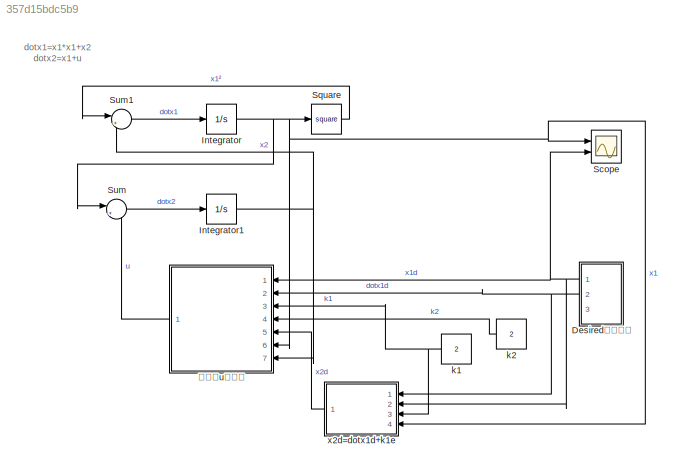
MODEL slx_357d15bdc5b9
KIND model
CONFIG AbsTol = auto
CONFIG EnableMultiTasking = off
CONFIG FixedStep = auto
CONFIG MaxStep = auto
CONFIG MinStep = auto
CONFIG RelTol = 1e-3
CONFIG SampleTimeConstraint = Unconstrained
CONFIG SolverName = VariableStepAuto
CONFIG StartTime = 0.0
CONFIG StopTime = 60
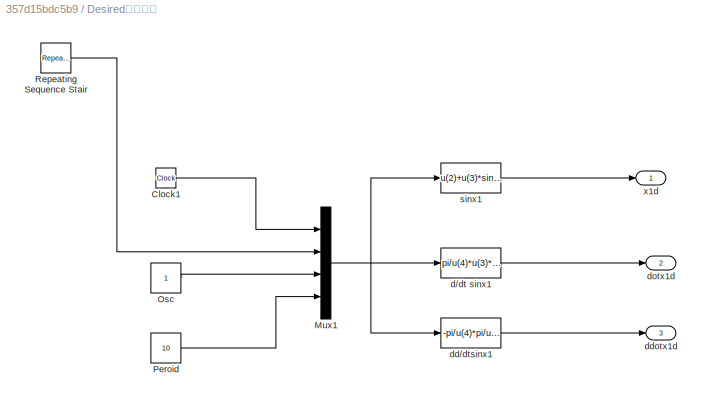
BLOCK [SubSystem] Desired设定轨迹
  Ports = [0, 3]
  RequestExecContextInheritance = off
BLOCK [Clock] Desired设定轨迹/Clock1
  Decimation = 100
BLOCK [Mux] Desired设定轨迹/Mux1
  DisplayOption = bar
  Ports = [4, 1]
BLOCK [Constant] Desired设定轨迹/Osc
BLOCK [Constant] Desired设定轨迹/Peroid
  Value = 10
BLOCK [Reference] Desired设定轨迹/Repeating Sequence Stair  REF=simulink/Sources/Repeating
Sequence
Stair
  Ports = [0, 1]
  SourceBlock = simulink/Sources/Repeating\nSequence\nStair
  SourceProductBaseCode = SL
  SourceType = Repeating Sequence Stair
BLOCK [Fcn] Desired设定轨迹/d//dt sinx1
  Expr = pi/u(4)*u(3)*cos(u(1)*pi/u(4))
BLOCK [Fcn] Desired设定轨迹/dd//dtsinx1
  Expr = -pi/u(4)*pi/u(4)*u(3)*sin(u(1)*pi/u(4))
BLOCK [Outport] Desired设定轨迹/ddotx1d
  Port = 3
BLOCK [Outport] Desired设定轨迹/dotx1d
  Port = 2
BLOCK [Fcn] Desired设定轨迹/sinx1
  Expr = u(2)+u(3)*sin(u(1)*pi/u(4))
BLOCK [Outport] Desired设定轨迹/x1d
BLOCK [Integrator] Integrator
  Ports = [1, 1]
BLOCK [Integrator] Integrator1
  Ports = [1, 1]
BLOCK [Scope] Scope
  Floating = off
  NumInputPorts = 2
  Ports = [2]
  ScopeSpecificationString = Simulink.scopes.TimeScopeBlockCfg('CurrentConfiguration', extmgr.ConfigurationSet(extmgr.Configuration('Core','General UI',true),extmgr.Configuration('Core','Source UI',true),extmgr.Configuration('Sources','WiredSimulink',true),extmgr.Configuration('Visuals','Time Domain',true,'SerializedDisplays',{struct('MinYLimReal','-0.27215','MaxYLimReal','2.27352','YLabelReal','','MinYLimMag','0.00000','MaxY...<+1357ch>
BLOCK [Math] Square
  Operator = square
  Ports = [1, 1]
BLOCK [Sum] Sum
  Inputs = |++
  Ports = [2, 1]
BLOCK [Sum] Sum1
  Inputs = |++
  Ports = [2, 1]
BLOCK [Constant] k1
  Value = 2
BLOCK [Constant] k2
  NameLocation = top
  Value = 2
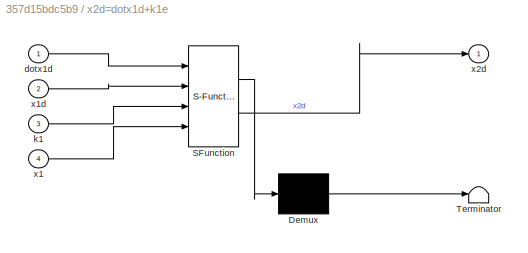
BLOCK [SubSystem] x2d=dotx1d+k1e
  ErrorFcn = Stateflow.Translate.translate
  PermitHierarchicalResolution = ExplicitOnly
  Ports = [4, 1]
  RequestExecContextInheritance = off
  SFBlockType = MATLAB Function
  TreatAsAtomicUnit = on
BLOCK [Demux] x2d=dotx1d+k1e/ Demux 
  Outputs = 1
  Ports = [1, 1]
BLOCK [S-Function] x2d=dotx1d+k1e/ SFunction 
  EnableBusSupport = on
  FunctionName = sf_sfun
  PortCounts = [4 2]
  Ports = [4, 2]
  SFcnIsStateOwnerBlock = off
  SFunctionDeploymentMode = off
  Tag = Stateflow S-Function 4
BLOCK [Terminator] x2d=dotx1d+k1e/ Terminator 
BLOCK [Inport] x2d=dotx1d+k1e/dotx1d
BLOCK [Inport] x2d=dotx1d+k1e/k1
  Port = 3
BLOCK [Inport] x2d=dotx1d+k1e/x1
  Port = 4
BLOCK [Inport] x2d=dotx1d+k1e/x1d
  Port = 2
BLOCK [Outport] x2d=dotx1d+k1e/x2d
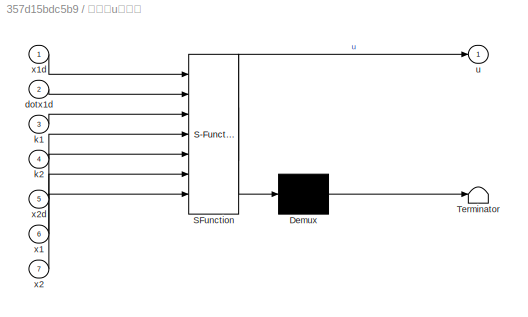
BLOCK [SubSystem] 控制器u表达式
  ErrorFcn = Stateflow.Translate.translate
  PermitHierarchicalResolution = ExplicitOnly
  Ports = [7, 1]
  RequestExecContextInheritance = off
  SFBlockType = MATLAB Function
  TreatAsAtomicUnit = on
BLOCK [Demux] 控制器u表达式/ Demux 
  Outputs = 1
  Ports = [1, 1]
BLOCK [S-Function] 控制器u表达式/ SFunction 
  EnableBusSupport = on
  FunctionName = sf_sfun
  PortCounts = [7 2]
  Ports = [7, 2]
  SFcnIsStateOwnerBlock = off
  SFunctionDeploymentMode = off
  Tag = Stateflow S-Function 3
BLOCK [Terminator] 控制器u表达式/ Terminator 
BLOCK [Inport] 控制器u表达式/dotx1d
  Port = 2
BLOCK [Inport] 控制器u表达式/k1
  Port = 3
BLOCK [Inport] 控制器u表达式/k2
  Port = 4
BLOCK [Outport] 控制器u表达式/u
BLOCK [Inport] 控制器u表达式/x1
  Port = 6
BLOCK [Inport] 控制器u表达式/x1d
BLOCK [Inport] 控制器u表达式/x2
  Port = 7
BLOCK [Inport] 控制器u表达式/x2d
  Port = 5
ANNOTATION (root): dotx1=x1*x1+x2 dotx2=x1+u
LINE Desired设定轨迹/Clock1:1 -> Desired设定轨迹/Mux1:1
NET Desired设定轨迹/Mux1:1 -> Desired设定轨迹/d//dt sinx1:1, Desired设定轨迹/dd//dtsinx1:1, Desired设定轨迹/sinx1:1
LINE Desired设定轨迹/Osc:1 -> Desired设定轨迹/Mux1:3
LINE Desired设定轨迹/Peroid:1 -> Desired设定轨迹/Mux1:4
LINE Desired设定轨迹/Repeating Sequence Stair:1 -> Desired设定轨迹/Mux1:2
LINE Desired设定轨迹/d//dt sinx1:1 -> Desired设定轨迹/dotx1d:1
LINE Desired设定轨迹/dd//dtsinx1:1 -> Desired设定轨迹/ddotx1d:1
LINE Desired设定轨迹/sinx1:1 -> Desired设定轨迹/x1d:1
NET Desired设定轨迹:1 -> Scope:2, x2d=dotx1d+k1e:2, 控制器u表达式:1
NET Desired设定轨迹:2 -> x2d=dotx1d+k1e:1, 控制器u表达式:2
NET Integrator1:1 -> Sum1:2, 控制器u表达式:7
NET Integrator:1 -> Scope:1, Square:1, Sum:1, x2d=dotx1d+k1e:4, 控制器u表达式:6
LINE Square:1 -> Sum1:1
LINE Sum1:1 -> Integrator:1
LINE Sum:1 -> Integrator1:1
NET k1:1 -> x2d=dotx1d+k1e:3, 控制器u表达式:3
LINE k2:1 -> 控制器u表达式:4
LINE x2d=dotx1d+k1e:1 -> 控制器u表达式:5
LINE 控制器u表达式:1 -> Sum:2
note: NET lines group one-source signal fan-out (src -> all destinations, sorted); 1:1 wires keep LINE
CHART 控制器u表达式 states=1 transitions=1
  STATE_LABEL 'eML_blk_kernel()'
  STATE_LABEL 'SCRIPT:\nfunction u = fcn(x1d,dotx1d,k1,k2,x2d,x1,x2)\n\nt1=x1d-x1\nt2=k1*(x1d-x1)\nt3=dotx1d\nt4=2*x1*(x1*x1+x2)\nt5=x1\nt6=k2*(x2d-x2)\n\nu=t1+t2+t3-t4-t5+t6\n'
CHART x2d=dotx1d+k1e states=1 transitions=1
  STATE_LABEL 'eML_blk_kernel()'
  STATE_LABEL 'SCRIPT:\nfunction x2d = fcn(dotx1d,x1d,k1,x1)\n\n\nx2d=dotx1d-x1*x1+k1*(x1d-x1);\n'
CHART  states=0 transitions=0
CHART  states=0 transitions=0
